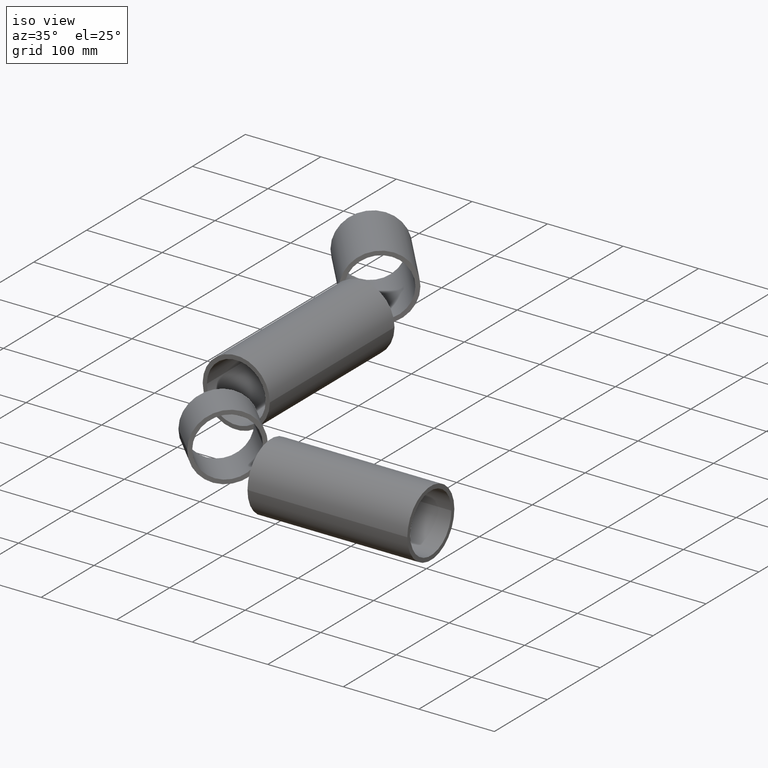
[diagram: clean part render]
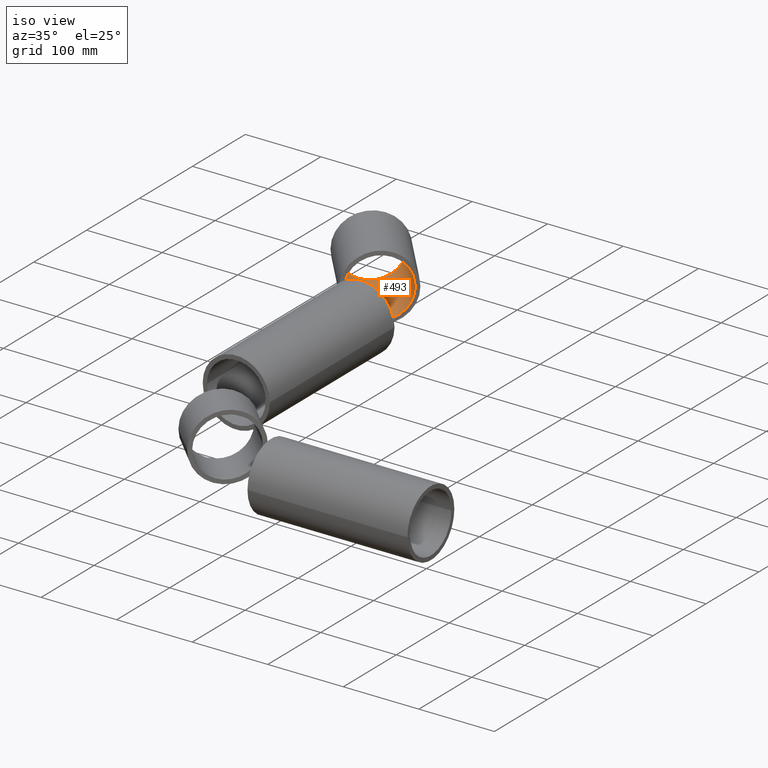
[diagram: same view with one face highlighted and labeled with its STEP entity id]
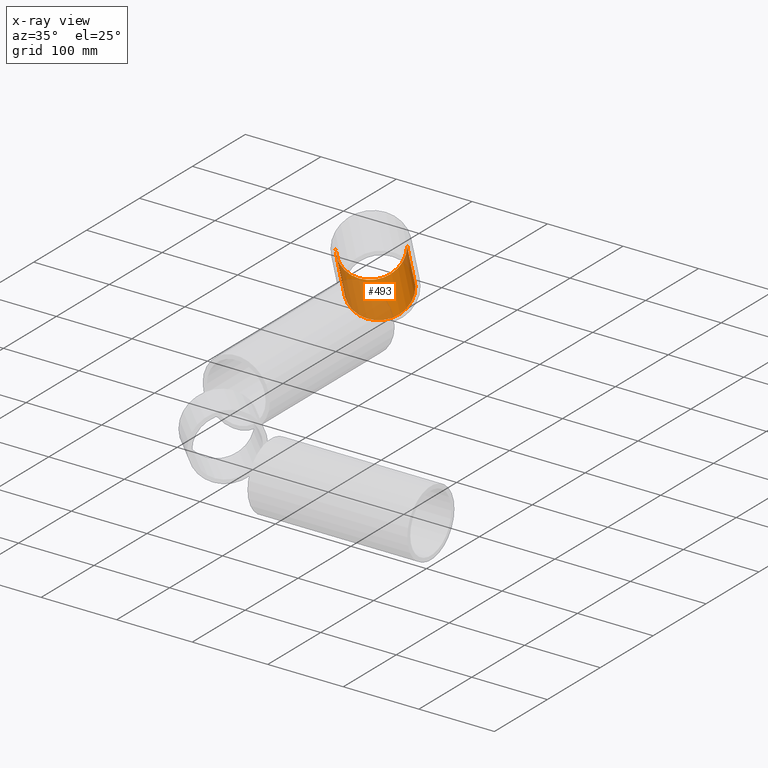
[diagram: x-ray of the same camera — body ghosted, the highlighted face saturated]
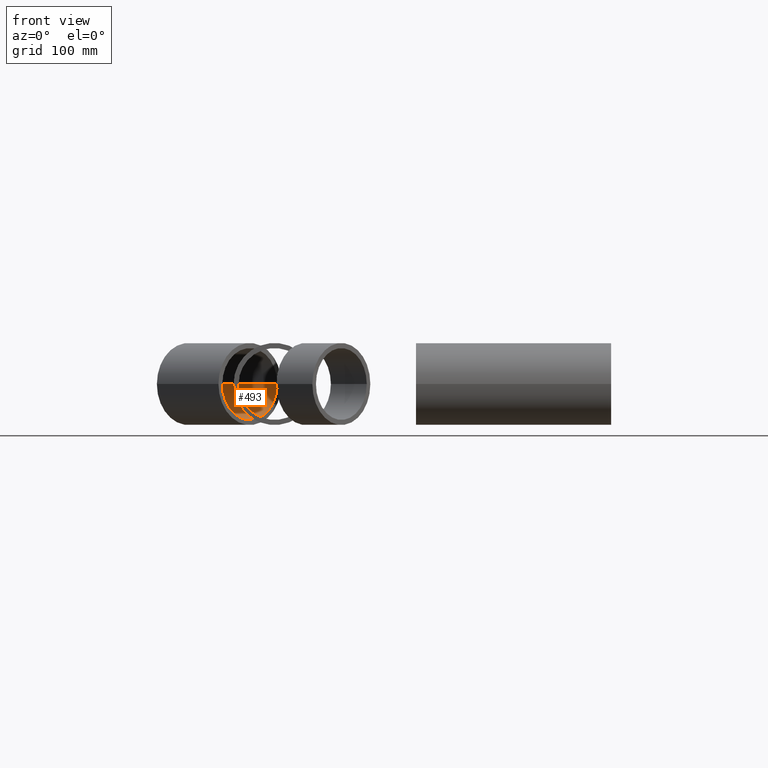
[diagram: same view with one face highlighted and labeled with its STEP entity id]
A machine part, iso view. The second image highlights one B-rep face of the part: STEP entity #493.
The next image is the same camera in x-ray: the body ghosted, the highlighted face saturated — about 51% of this face is hidden behind the body in this view.
A second angle (front view) of the same face is appended — the face is thin or edge-on in the first view.
In plain terms, the highlighted cylindrical surface (edge-blend (fillet) strip) has radius 38.95 mm, axis along (0.6428, -0.766, -0).
Its self-contained STEP definition (entity closure, byte-faithful):
#35 = EDGE_CURVE ( 'NONE', #525, #100, #209, .T. ) ;
#70 = CARTESIAN_POINT ( 'NONE',  ( -322.9301293262802801, 567.3761329661010677, 0.000000000000000000 ) ) ;
#96 = FACE_OUTER_BOUND ( 'NONE', #131, .T. ) ;
#100 = VERTEX_POINT ( 'NONE', #365 ) ;
#120 = DIRECTION ( 'NONE',  ( 0.6427876096865412503, -0.7660444431189763481, -0.000000000000000000 ) ) ;
#131 = EDGE_LOOP ( 'NONE', ( #225, #241, #277, #671 ) ) ;
#132 = DIRECTION ( 'NONE',  ( -0.6427876096865413613, 0.7660444431189764591, 0.000000000000000000 ) ) ;
#173 = CARTESIAN_POINT ( 'NONE',  ( -285.9833477455069328, 462.7492302262081694, 0.000000000000000000 ) ) ;
#181 = DIRECTION ( 'NONE',  ( 0.6427876096865413613, -0.7660444431189764591, -0.000000000000000000 ) ) ;
#209 = LINE ( 'NONE', #371, #397 ) ;
#213 = CARTESIAN_POINT ( 'NONE',  ( -382.6049914452486291, 517.3029781715194986, 4.769999282678943960E-15 ) ) ;
#221 = CYLINDRICAL_SURFACE ( 'NONE', #251, 38.95000000000004547 ) ;
#225 = ORIENTED_EDGE ( 'NONE', *, *, #503, .T. ) ;
#241 = ORIENTED_EDGE ( 'NONE', *, *, #35, .T. ) ;
#251 = AXIS2_PLACEMENT_3D ( 'NONE', #329, #181, #323 ) ;
#254 = EDGE_CURVE ( 'NONE', #385, #100, #680, .T. ) ;
#269 = CARTESIAN_POINT ( 'NONE',  ( -322.9301293262802801, 567.3761329661010677, 0.000000000000000000 ) ) ;
#271 = CARTESIAN_POINT ( 'NONE',  ( -352.7675603857644546, 542.3395555688102831, 0.000000000000000000 ) ) ;
#277 = ORIENTED_EDGE ( 'NONE', *, *, #254, .F. ) ;
#280 = DIRECTION ( 'NONE',  ( -0.6427876096865413613, 0.7660444431189764591, 0.000000000000000000 ) ) ;
#323 = DIRECTION ( 'NONE',  ( 0.7660444431189763481, 0.6427876096865413613, 0.000000000000000000 ) ) ;
#329 = CARTESIAN_POINT ( 'NONE',  ( -352.7675603857644546, 542.3395555688102831, 0.000000000000000000 ) ) ;
#365 = CARTESIAN_POINT ( 'NONE',  ( -315.8207788049911073, 437.7126528289173848, 4.769999282678943960E-15 ) ) ;
#371 = CARTESIAN_POINT ( 'NONE',  ( -382.6049914452486291, 517.3029781715194986, 4.769999282678943960E-15 ) ) ;
#378 = DIRECTION ( 'NONE',  ( 0.6427876096865412503, -0.7660444431189763481, -0.000000000000000000 ) ) ;
#385 = VERTEX_POINT ( 'NONE', #595 ) ;
#397 = VECTOR ( 'NONE', #378, 1000.000000000000114 ) ;
#438 = DIRECTION ( 'NONE',  ( -0.7660444431189763481, -0.6427876096865413613, 0.000000000000000000 ) ) ;
#439 = VERTEX_POINT ( 'NONE', #269 ) ;
#493 = ADVANCED_FACE ( 'NONE', ( #96 ), #221, .F. ) ;
#503 = EDGE_CURVE ( 'NONE', #439, #525, #575, .T. ) ;
#518 = AXIS2_PLACEMENT_3D ( 'NONE', #173, #132, #684 ) ;
#525 = VERTEX_POINT ( 'NONE', #213 ) ;
#574 = LINE ( 'NONE', #70, #637 ) ;
#575 = CIRCLE ( 'NONE', #657, 38.95000000000004547 ) ;
#595 = CARTESIAN_POINT ( 'NONE',  ( -256.1459166860227583, 487.7858076234990108, 0.000000000000000000 ) ) ;
#637 = VECTOR ( 'NONE', #120, 1000.000000000000114 ) ;
#657 = AXIS2_PLACEMENT_3D ( 'NONE', #271, #280, #438 ) ;
#671 = ORIENTED_EDGE ( 'NONE', *, *, #702, .F. ) ;
#680 = CIRCLE ( 'NONE', #518, 38.95000000000004547 ) ;
#684 = DIRECTION ( 'NONE',  ( -0.7660444431189763481, -0.6427876096865413613, 0.000000000000000000 ) ) ;
#702 = EDGE_CURVE ( 'NONE', #439, #385, #574, .T. ) ;